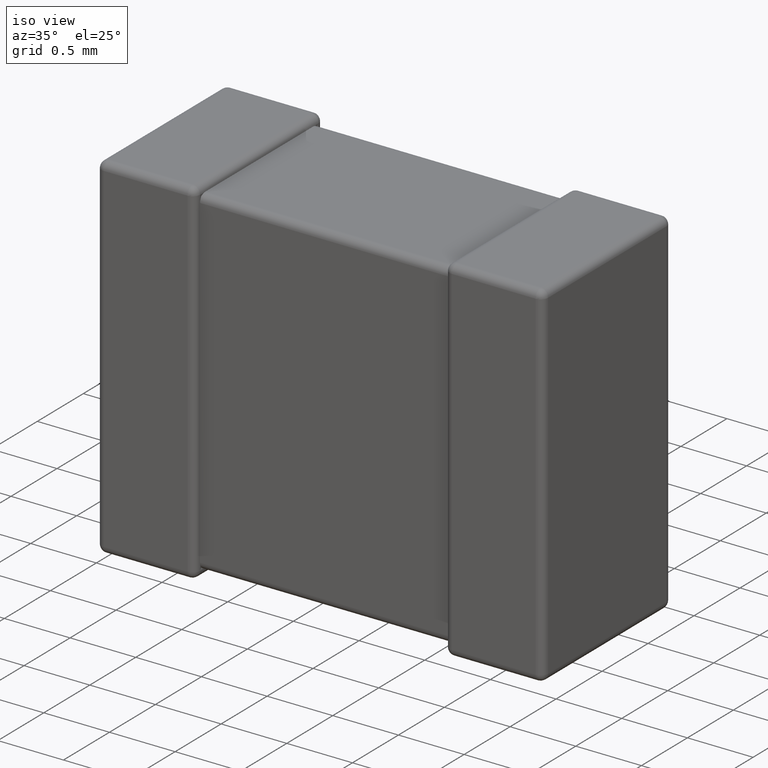
[diagram: clean part render]
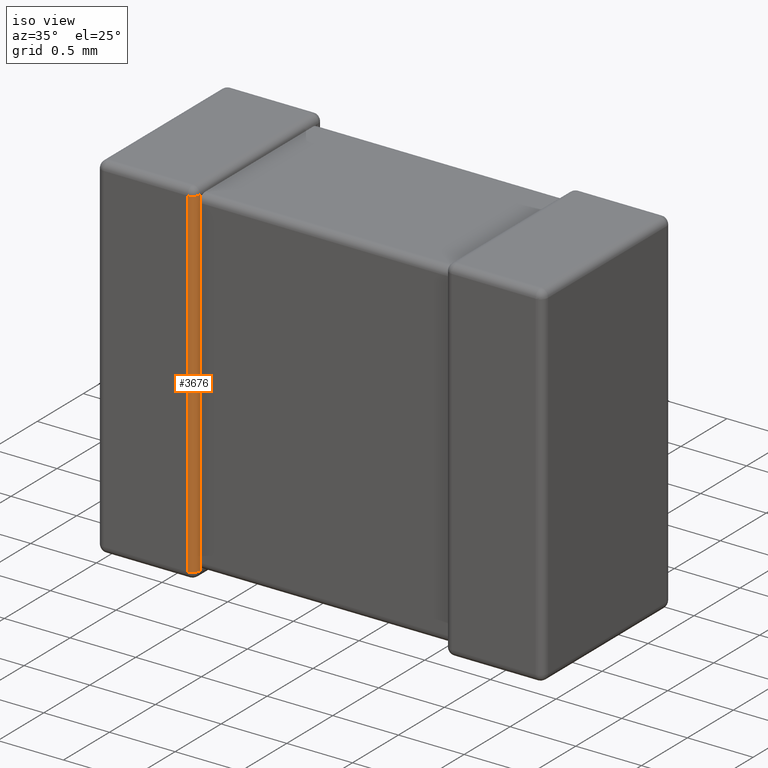
[diagram: same view with one face highlighted and labeled with its STEP entity id]
A machine part, iso view. The second image highlights one B-rep face of the part: STEP entity #3676.
In plain terms, the highlighted cylindrical surface (edge-blend (fillet) strip) has radius 0.0562 mm, axis along (0, 0, 1).
Its self-contained STEP definition (entity closure, byte-faithful):
#196 = VECTOR ( 'NONE', #494, 1000.000000000000000 ) ;
#216 = CARTESIAN_POINT ( 'NONE',  ( 0.7500000000000000000, 0.05615999999999975900, -2.700000000000000200 ) ) ;
#406 = EDGE_CURVE ( 'NONE', #4099, #3183, #1547, .T. ) ;
#456 = CARTESIAN_POINT ( 'NONE',  ( 0.7500000000000050000, 0.05616000000000000200, 0.0000000000000000000 ) ) ;
#457 = DIRECTION ( 'NONE',  ( 0.0000000000000000000, 0.0000000000000000000, 1.000000000000000000 ) ) ;
#494 = DIRECTION ( 'NONE',  ( 0.0000000000000000000, 0.0000000000000000000, 1.000000000000000000 ) ) ;
#527 = DIRECTION ( 'NONE',  ( 1.000000000000000000, 0.0000000000000000000, 4.826398559853565100E-016 ) ) ;
#811 = DIRECTION ( 'NONE',  ( 1.000000000000000000, 0.0000000000000000000, 0.0000000000000000000 ) ) ;
#835 = VECTOR ( 'NONE', #1439, 1000.000000000000000 ) ;
#1004 = LINE ( 'NONE', #456, #196 ) ;
#1065 = ORIENTED_EDGE ( 'NONE', *, *, #2491, .T. ) ;
#1098 = AXIS2_PLACEMENT_3D ( 'NONE', #1965, #3714, #527 ) ;
#1137 = EDGE_CURVE ( 'NONE', #2737, #4556, #1004, .T. ) ;
#1201 = LINE ( 'NONE', #4025, #3502 ) ;
#1439 = DIRECTION ( 'NONE',  ( 0.0000000000000000000, 0.0000000000000000000, 1.000000000000000000 ) ) ;
#1483 = DIRECTION ( 'NONE',  ( 0.0000000000000000000, 0.0000000000000000000, 1.000000000000000000 ) ) ;
#1499 = FACE_OUTER_BOUND ( 'NONE', #3080, .T. ) ;
#1547 = LINE ( 'NONE', #3577, #835 ) ;
#1708 = CARTESIAN_POINT ( 'NONE',  ( 0.6938400000000050100, 0.0000000000000000000, -0.05616000000000000200 ) ) ;
#1737 = AXIS2_PLACEMENT_3D ( 'NONE', #4283, #3536, #4603 ) ;
#1740 = ORIENTED_EDGE ( 'NONE', *, *, #3010, .T. ) ;
#1849 = CARTESIAN_POINT ( 'NONE',  ( 0.6938400000000050100, 0.0000000000000000000, -2.643840000000000000 ) ) ;
#1894 = ORIENTED_EDGE ( 'NONE', *, *, #1137, .T. ) ;
#1930 = EDGE_CURVE ( 'NONE', #2832, #2750, #1201, .T. ) ;
#1965 = CARTESIAN_POINT ( 'NONE',  ( 0.6938400000000050100, 0.05616000000000000200, -0.05616000000000000200 ) ) ;
#2055 = DIRECTION ( 'NONE',  ( -0.0000000000000000000, -0.0000000000000000000, 1.000000000000000000 ) ) ;
#2223 = CIRCLE ( 'NONE', #1737, 0.05615999999999997400 ) ;
#2253 = CARTESIAN_POINT ( 'NONE',  ( 0.7500000000000000000, 0.05615999999999975900, -0.05616000000000041100 ) ) ;
#2329 = CYLINDRICAL_SURFACE ( 'NONE', #4307, 0.05615999999999997400 ) ;
#2491 = EDGE_CURVE ( 'NONE', #4556, #4099, #2635, .T. ) ;
#2635 = LINE ( 'NONE', #216, #2695 ) ;
#2695 = VECTOR ( 'NONE', #2055, 1000.000000000000000 ) ;
#2737 = VERTEX_POINT ( 'NONE', #3260 ) ;
#2750 = VERTEX_POINT ( 'NONE', #1708 ) ;
#2832 = VERTEX_POINT ( 'NONE', #1849 ) ;
#3010 = EDGE_CURVE ( 'NONE', #3183, #2750, #3926, .T. ) ;
#3080 = EDGE_LOOP ( 'NONE', ( #4373, #1894, #1065, #4248, #1740, #3177 ) ) ;
#3084 = CARTESIAN_POINT ( 'NONE',  ( 0.7500000000000000000, 0.05615999999999975900, -0.1123200000000003900 ) ) ;
#3177 = ORIENTED_EDGE ( 'NONE', *, *, #1930, .F. ) ;
#3183 = VERTEX_POINT ( 'NONE', #2253 ) ;
#3260 = CARTESIAN_POINT ( 'NONE',  ( 0.7500000000000000000, 0.05615999999999975900, -2.643839999999999500 ) ) ;
#3502 = VECTOR ( 'NONE', #1483, 1000.000000000000000 ) ;
#3536 = DIRECTION ( 'NONE',  ( -0.0000000000000000000, -0.0000000000000000000, 1.000000000000000000 ) ) ;
#3577 = CARTESIAN_POINT ( 'NONE',  ( 0.7500000000000050000, 0.05616000000000000200, 0.0000000000000000000 ) ) ;
#3676 = ADVANCED_FACE ( 'NONE', ( #1499 ), #2329, .T. ) ;
#3714 = DIRECTION ( 'NONE',  ( 4.826398559853565100E-016, -0.0000000000000000000, -1.000000000000000000 ) ) ;
#3827 = CARTESIAN_POINT ( 'NONE',  ( 0.7500000000000000000, 0.05615999999999975900, -2.587679999999999800 ) ) ;
#3926 = CIRCLE ( 'NONE', #1098, 0.05615999999999997400 ) ;
#4025 = CARTESIAN_POINT ( 'NONE',  ( 0.6938400000000050100, 0.0000000000000000000, 0.0000000000000000000 ) ) ;
#4099 = VERTEX_POINT ( 'NONE', #3084 ) ;
#4248 = ORIENTED_EDGE ( 'NONE', *, *, #406, .T. ) ;
#4283 = CARTESIAN_POINT ( 'NONE',  ( 0.6938400000000050100, 0.05616000000000000200, -2.643840000000000000 ) ) ;
#4307 = AXIS2_PLACEMENT_3D ( 'NONE', #4409, #457, #811 ) ;
#4373 = ORIENTED_EDGE ( 'NONE', *, *, #4456, .T. ) ;
#4409 = CARTESIAN_POINT ( 'NONE',  ( 0.6938400000000050100, 0.05616000000000000200, 0.0000000000000000000 ) ) ;
#4456 = EDGE_CURVE ( 'NONE', #2832, #2737, #2223, .T. ) ;
#4556 = VERTEX_POINT ( 'NONE', #3827 ) ;
#4603 = DIRECTION ( 'NONE',  ( -1.000000000000000000, 0.0000000000000000000, 0.0000000000000000000 ) ) ;